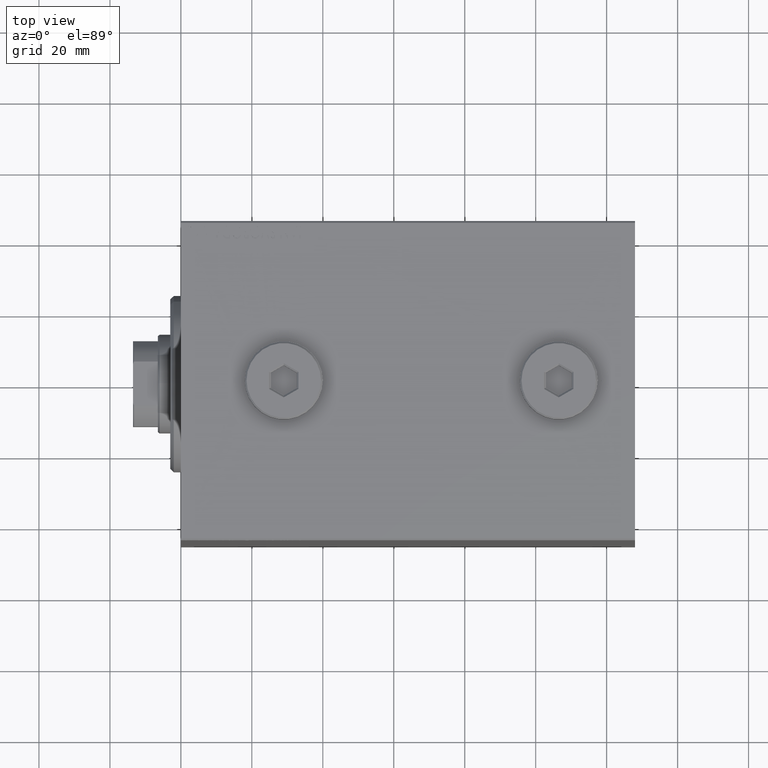
[diagram: clean part render]
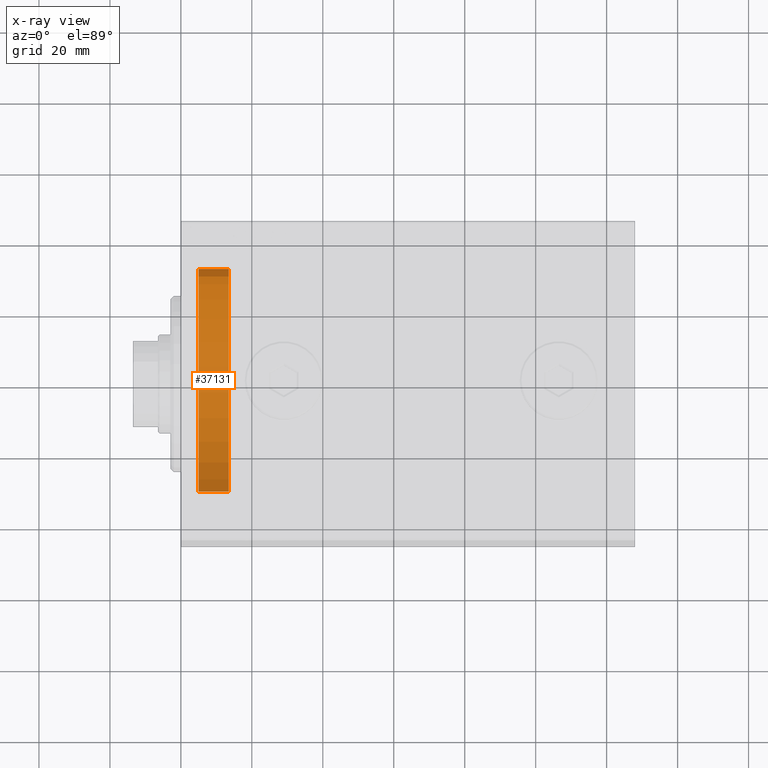
[diagram: x-ray — body ghosted, one internal face saturated and labeled with its STEP entity id]
A machine part, top view, then the same camera in x-ray: the body is ghosted and one INTERNAL B-rep face — a face not visible from any outside direction — is saturated and labeled: STEP entity #37131.
In plain terms, the highlighted cylindrical surface (partial cylindrical patch) has radius 32.5 mm, axis along (-1, 0, 0).
Its self-contained STEP definition (entity closure, byte-faithful):
#369 = VERTEX_POINT ( 'NONE', #40411 ) ;
#3168 = DIRECTION ( 'NONE',  ( 0.000000000000000000, 0.000000000000000000, -1.000000000000000000 ) ) ;
#3397 = CYLINDRICAL_SURFACE ( 'NONE', #20831, 32.50000000000000000 ) ;
#9580 = CARTESIAN_POINT ( 'NONE',  ( -13.50000000000000178, 0.000000000000000000, -32.50000000000000000 ) ) ;
#9607 = DIRECTION ( 'NONE',  ( 1.000000000000000000, -0.000000000000000000, -0.000000000000000000 ) ) ;
#10424 = CARTESIAN_POINT ( 'NONE',  ( -5.000000000000000000, 0.000000000000000000, 0.000000000000000000 ) ) ;
#10925 = DIRECTION ( 'NONE',  ( 1.000000000000000000, -0.000000000000000000, -0.000000000000000000 ) ) ;
#11304 = CIRCLE ( 'NONE', #33984, 32.50000000000000000 ) ;
#13251 = EDGE_CURVE ( 'NONE', #34077, #35670, #11304, .T. ) ;
#13645 = DIRECTION ( 'NONE',  ( 0.000000000000000000, 0.000000000000000000, 1.000000000000000000 ) ) ;
#17834 = AXIS2_PLACEMENT_3D ( 'NONE', #41170, #44836, #40738 ) ;
#20831 = AXIS2_PLACEMENT_3D ( 'NONE', #21047, #9607, #3168 ) ;
#20921 = CARTESIAN_POINT ( 'NONE',  ( -5.000000000000000000, 0.000000000000000000, -32.50000000000000000 ) ) ;
#21047 = CARTESIAN_POINT ( 'NONE',  ( -13.50000000000000178, 0.000000000000000000, 0.000000000000000000 ) ) ;
#21581 = VECTOR ( 'NONE', #40966, 1000.000000000000000 ) ;
#23115 = LINE ( 'NONE', #9580, #21581 ) ;
#23758 = ORIENTED_EDGE ( 'NONE', *, *, #33985, .F. ) ;
#25189 = VERTEX_POINT ( 'NONE', #33844 ) ;
#25912 = EDGE_CURVE ( 'NONE', #25189, #34077, #42987, .T. ) ;
#27228 = FACE_OUTER_BOUND ( 'NONE', #41273, .T. ) ;
#30509 = EDGE_CURVE ( 'NONE', #25189, #369, #36096, .T. ) ;
#32288 = ORIENTED_EDGE ( 'NONE', *, *, #30509, .F. ) ;
#33318 = ORIENTED_EDGE ( 'NONE', *, *, #25912, .T. ) ;
#33844 = CARTESIAN_POINT ( 'NONE',  ( -13.50000000000000178, 3.980102097228898626E-15, 32.50000000000000000 ) ) ;
#33984 = AXIS2_PLACEMENT_3D ( 'NONE', #10424, #39042, #13645 ) ;
#33985 = EDGE_CURVE ( 'NONE', #369, #35670, #23115, .T. ) ;
#34077 = VERTEX_POINT ( 'NONE', #44850 ) ;
#34212 = VECTOR ( 'NONE', #10925, 1000.000000000000000 ) ;
#35670 = VERTEX_POINT ( 'NONE', #20921 ) ;
#36096 = CIRCLE ( 'NONE', #17834, 32.50000000000000000 ) ;
#37131 = ADVANCED_FACE ( 'NONE', ( #27228 ), #3397, .T. ) ;
#38861 = CARTESIAN_POINT ( 'NONE',  ( -13.50000000000000178, 3.980102097228898626E-15, 32.50000000000000000 ) ) ;
#39042 = DIRECTION ( 'NONE',  ( -1.000000000000000000, 0.000000000000000000, 0.000000000000000000 ) ) ;
#40411 = CARTESIAN_POINT ( 'NONE',  ( -13.50000000000000178, 0.000000000000000000, -32.50000000000000000 ) ) ;
#40738 = DIRECTION ( 'NONE',  ( 0.000000000000000000, 0.000000000000000000, 1.000000000000000000 ) ) ;
#40966 = DIRECTION ( 'NONE',  ( 1.000000000000000000, -0.000000000000000000, -0.000000000000000000 ) ) ;
#41170 = CARTESIAN_POINT ( 'NONE',  ( -13.50000000000000178, 0.000000000000000000, 0.000000000000000000 ) ) ;
#41273 = EDGE_LOOP ( 'NONE', ( #32288, #33318, #43768, #23758 ) ) ;
#42987 = LINE ( 'NONE', #38861, #34212 ) ;
#43768 = ORIENTED_EDGE ( 'NONE', *, *, #13251, .T. ) ;
#44836 = DIRECTION ( 'NONE',  ( -1.000000000000000000, 0.000000000000000000, 0.000000000000000000 ) ) ;
#44850 = CARTESIAN_POINT ( 'NONE',  ( -5.000000000000000000, 3.980102097228898626E-15, 32.50000000000000000 ) ) ;